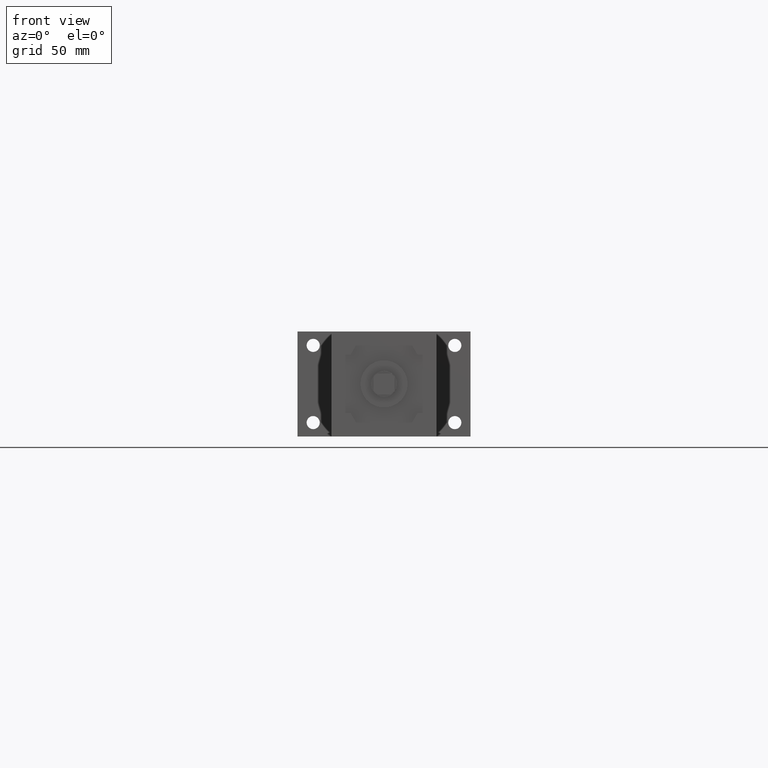
[diagram: clean part render]
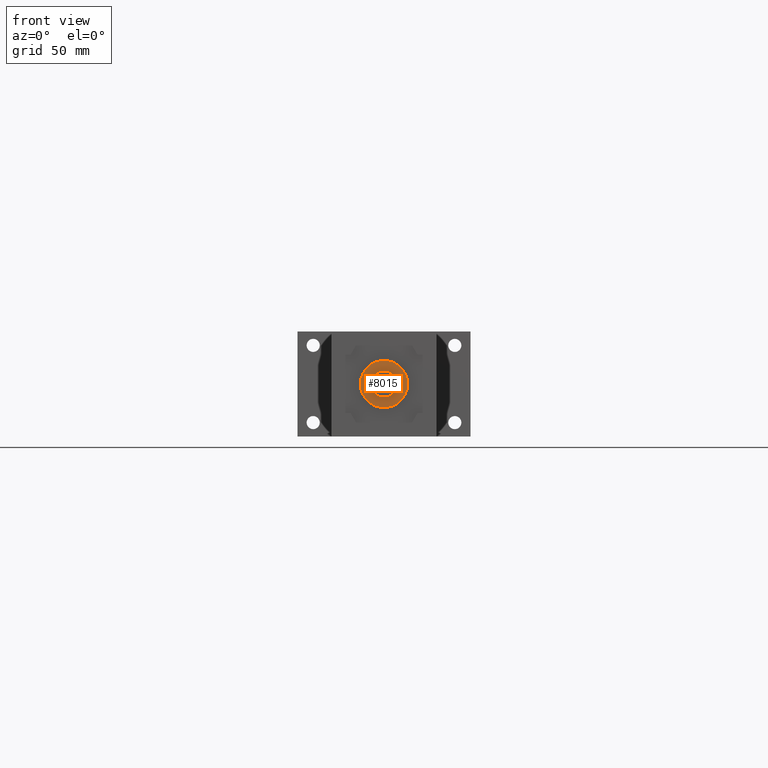
[diagram: same view with one face highlighted and labeled with its STEP entity id]
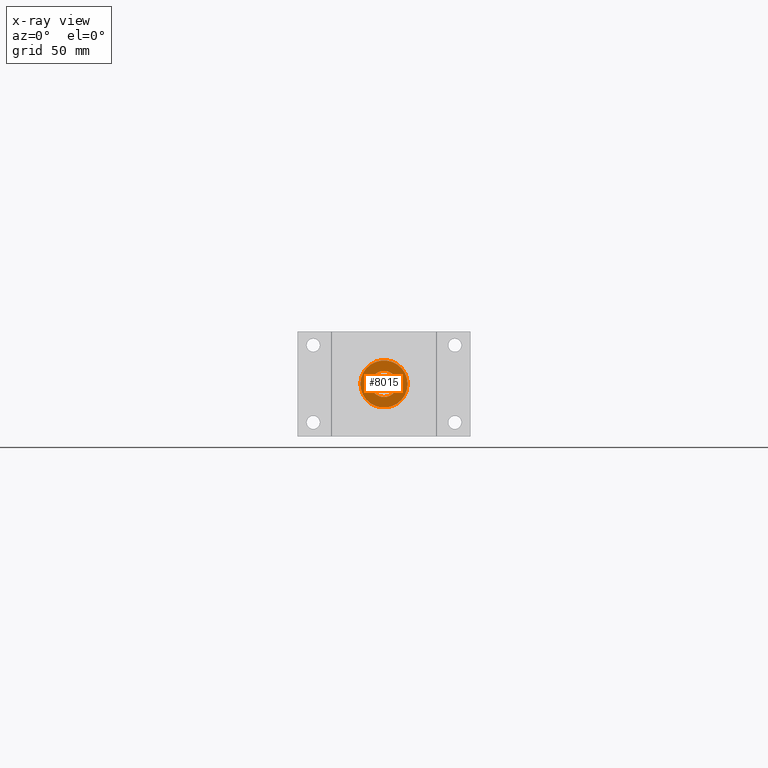
[diagram: x-ray of the same camera — body ghosted, the highlighted face saturated]
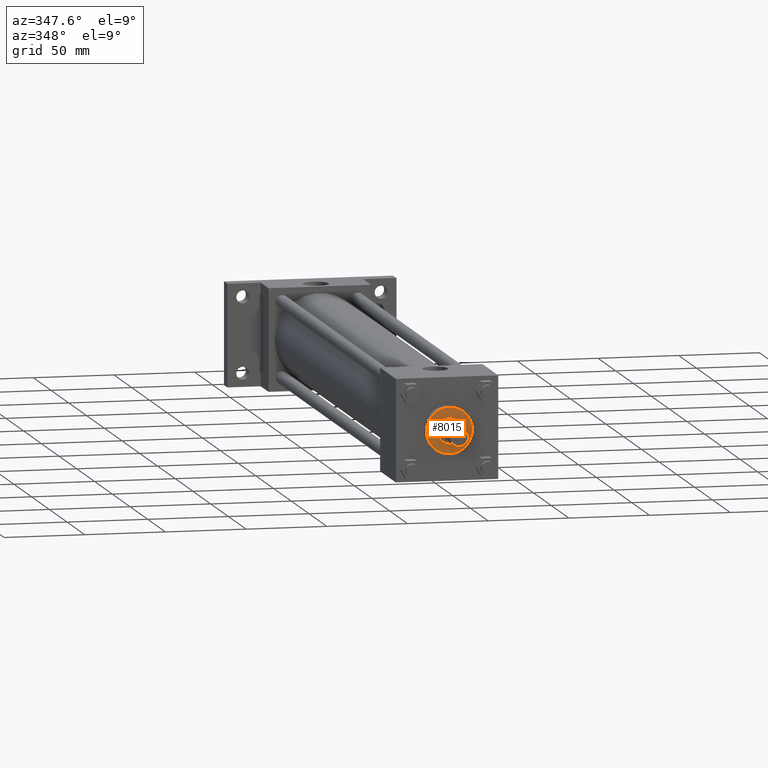
[diagram: same view with one face highlighted and labeled with its STEP entity id]
A machine part, front view. The second image highlights one B-rep face of the part: STEP entity #8015.
The next image is the same camera in x-ray: the body ghosted, the highlighted face saturated — about 0% of this face is hidden behind the body in this view.
A second angle (auxiliary view) of the same face is appended — the face is thin or edge-on in the first view.
In plain terms, the highlighted planar face has unit normal (0, 1, 0).
Its self-contained STEP definition (entity closure, byte-faithful):
#131=EDGE_CURVE('',#137,#137,#132,.T.);
#132=CIRCLE('',#133,7.937500000E+000);
#133=AXIS2_PLACEMENT_3D('',#134,#135,#136);
#134=CARTESIAN_POINT('',(0.000000000E+000,9.525000000E+000,0.000000000E+000));
#135=DIRECTION('',(0.0E+000,1.0E+000,0.0E+000));
#136=DIRECTION('',(1.0E+000,0.0E+000,0.0E+000));
#137=VERTEX_POINT('',#138);
#138=CARTESIAN_POINT('',(7.937500000E+000,9.525000000E+000,0.000000000E+000));
#400=FACE_OUTER_BOUND('',#402,.T.);
#401=FACE_BOUND('',#403,.T.);
#402=EDGE_LOOP('',(#404));
#403=EDGE_LOOP('',(#413));
#404=ORIENTED_EDGE('',*,*,#405,.F.);
#405=EDGE_CURVE('',#411,#411,#406,.T.);
#406=CIRCLE('',#407,1.428750000E+001);
#407=AXIS2_PLACEMENT_3D('',#408,#409,#410);
#408=CARTESIAN_POINT('',(0.000000000E+000,9.525000000E+000,0.000000000E+000));
#409=DIRECTION('',(0.0E+000,1.0E+000,0.0E+000));
#410=DIRECTION('',(1.0E+000,0.0E+000,0.0E+000));
#411=VERTEX_POINT('',#412);
#412=CARTESIAN_POINT('',(1.428750000E+001,9.525000000E+000,0.000000000E+000));
#413=ORIENTED_EDGE('',*,*,#131,.T.);
#414=PLANE('',#415);
#415=AXIS2_PLACEMENT_3D('',#416,#417,#418);
#416=CARTESIAN_POINT('',(0.000000000E+000,9.525000000E+000,0.000000000E+000));
#417=DIRECTION('',(0.0E+000,1.0E+000,0.0E+000));
#418=DIRECTION('',(0.0E+000,0.0E+000,1.0E+000));
#8015=ADVANCED_FACE('',(#400,#401),#414,.F.);